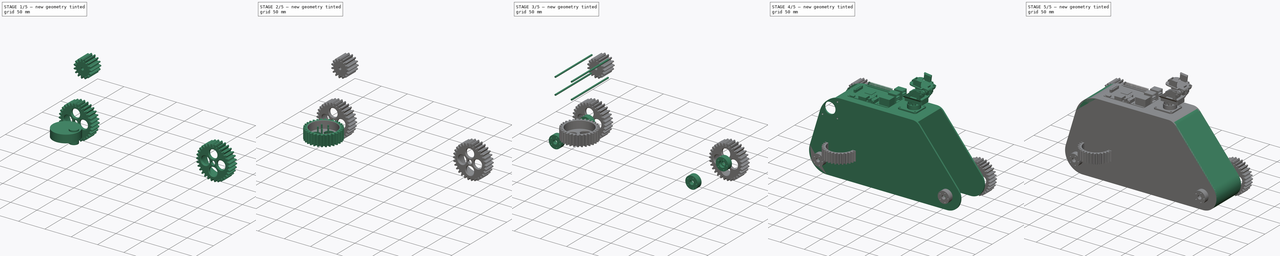
[diagram: build sequence overview — one tinted view per stage of 5, left to right]
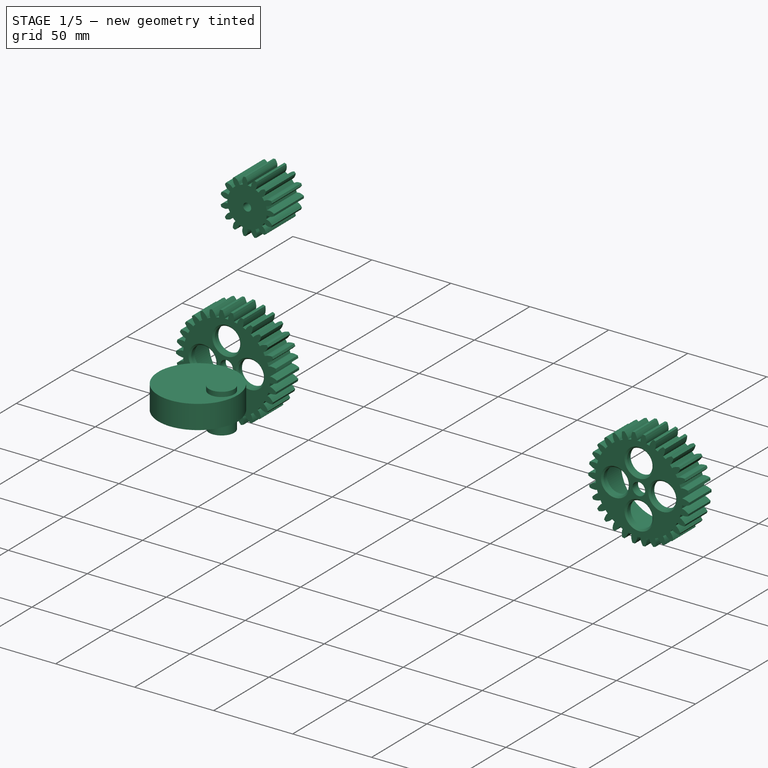
[diagram: stage 1 of 5 — iso view after this stage's code; geometry added in this stage tinted green]
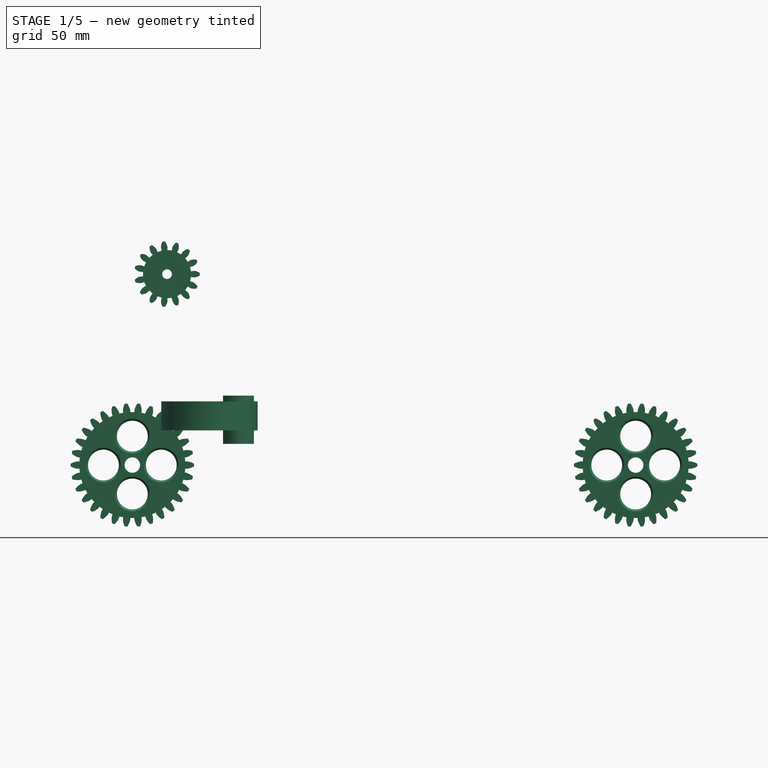
[diagram: stage 1 of 5 — front view after this stage's code; geometry added in this stage tinted green]
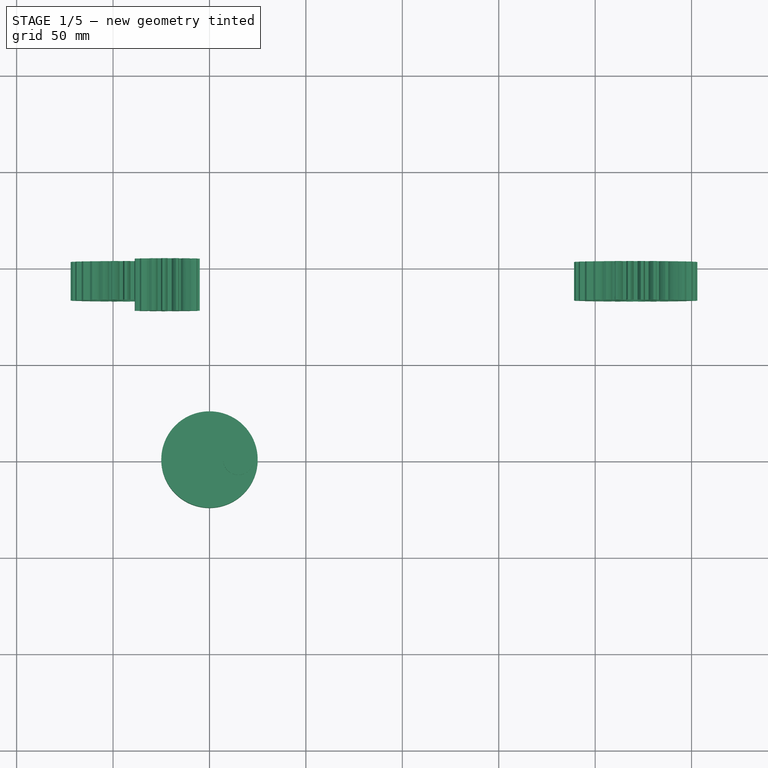
[diagram: stage 1 of 5 — top view after this stage's code; geometry added in this stage tinted green]
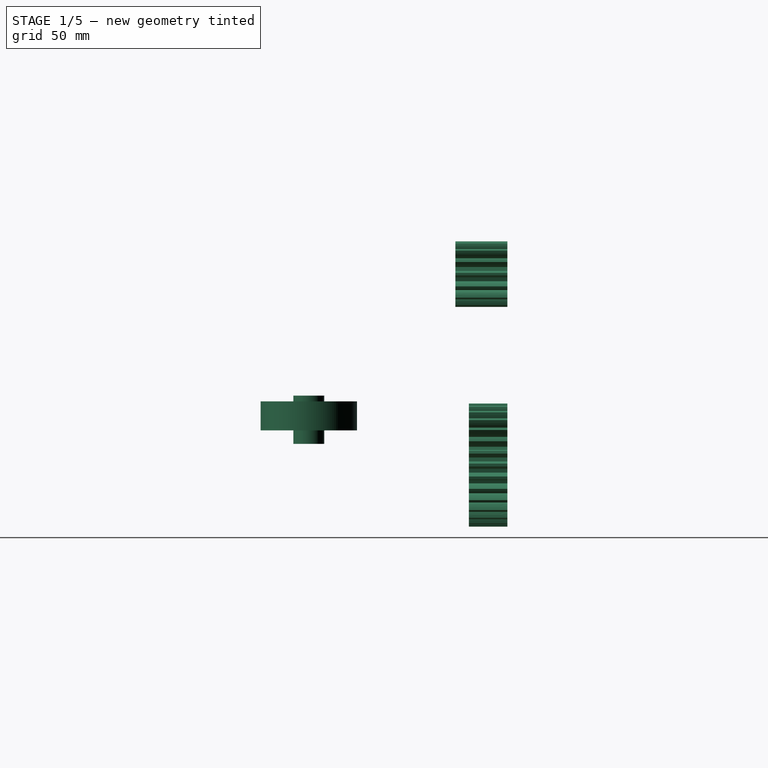
[diagram: stage 1 of 5 — right view after this stage's code; geometry added in this stage tinted green]
FCSTD DOCUMENT  (FreeCAD 0.15R4671 (Git))
Label: modelo
License: All rights reserved
LicenseURL: http://en.wikipedia.org/wiki/All_rights_reserved
objects: Part::Feature×40, Part::Cut×13, Part::Cylinder×10, Part::FeaturePython×8, Part::MultiFuse×7, Part::Mirroring×6, App::DocumentObjectGroup×6, Part::Box×5, Sketcher::SketchObject×1, PartDesign::Pad×1, PartDesign::Chamfer×1, PartDesign::Fillet×1
note: 94 computed .brp shape members not serialized (recipe doc carries the construction recipe); baked Part::Feature solids carry a one-line shape summary decoded from their .brp

FEATURE [Part::Cylinder] Cylinder006  label="Cylinder"
  Angle = 360
  Height = 25
  Placement = pos=(15,0,-2) rot=(0,0,1;0rad)
  Radius = 8
FEATURE [Part::Cylinder] Cylinder007  label="Cylinder005"
  Angle = 360
  Height = 15
  Placement = pos=(0,0,5) rot=(0,0,1;0rad)
  Radius = 25
FEATURE [Part::Feature] Fillet_solid  label="polia"
  Placement = pos=(-40,-10,-13) rot=(1,0,0;1.5708rad)
  shape: bbox 63.98 x 20 x 63.79 mm, 199 faces (baked)
FEATURE [Part::FeaturePython] Array005  label="polias-direita"  # Draft array (typed FeaturePython)
  Angle = 360
  ArrayType = 0
  Axis = (0,0,1)
  Base = -> Fillet_solid
  Center = (0,0,0)
  Fuse = false
  IntervalAxis = (0,0,0)
  IntervalX = (261,0,0)
  IntervalY = (0,1,0)
  IntervalZ = (0,0,0)
  NumberPolar = 0
  NumberX = 2
  NumberY = 0
  NumberZ = 0
FEATURE [Part::Mirroring] Part__Mirroring005  label="polias-esquerda"
  Base = (0,42,0)
  Normal = (0,1,0)
  Placement = pos=(0,-11,0) rot=(0,0,1;0rad)
  Source = -> Array005
FEATURE [App::DocumentObjectGroup] Group006  label="polia-correntes"
  Group = -> [Cut013,Chamfer,Fillet,Fillet_solid,Part__Mirroring005]
FEATURE [Part::FeaturePython] InvoluteGear001  # WARN: FeaturePython — macro-defined, semantics opaque (R4)
  backlash = 0
  beta = 0
  clearance = 0.25
  double_helix = false
  head = 0
  height = 27
  module = 2
  numpoints = 6
  pressure_angle = 20
  reversed_backlash = false
  shift = 0
  simple = false
  teeth = 15
  undercut = false
FEATURE [Part::Cylinder] Cylinder008  label="Cylinder006"
  Angle = 360
  Height = 25
  Placement = pos=(0,0,-3) rot=(0,0,1;0rad)
  Radius = 2.5
FEATURE [Part::Cylinder] Cylinder009  label="Cylinder007"
  Angle = 360
  Height = 20
  Placement = pos=(0,0,10) rot=(0,0,1;0rad)
  Radius = 10
FEATURE [Part::Cut] Cut014
  Base = -> InvoluteGear001
  Tool = -> Cylinder009
FEATURE [Part::Cut] Cut015
  Base = -> Cut014
  Placement = pos=(-22,-3,86) rot=(1,0,0;1.5708rad)
  Tool = -> Cylinder008
FEATURE [Part::Mirroring] Part__Mirroring006  label="Cut015 (Mirror #6)"
  Base = (0,39,0)
  Normal = (0,1,0)
  Placement = pos=(0,-5,0) rot=(0,0,1;0rad)
  Source = -> Cut015
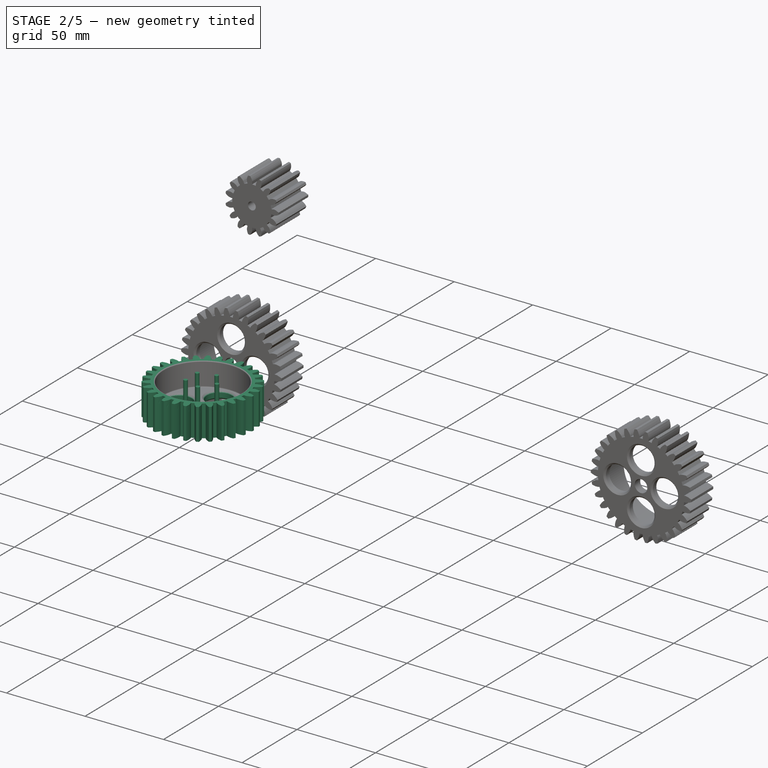
[diagram: stage 2 of 5 — iso view after this stage's code; geometry added in this stage tinted green]
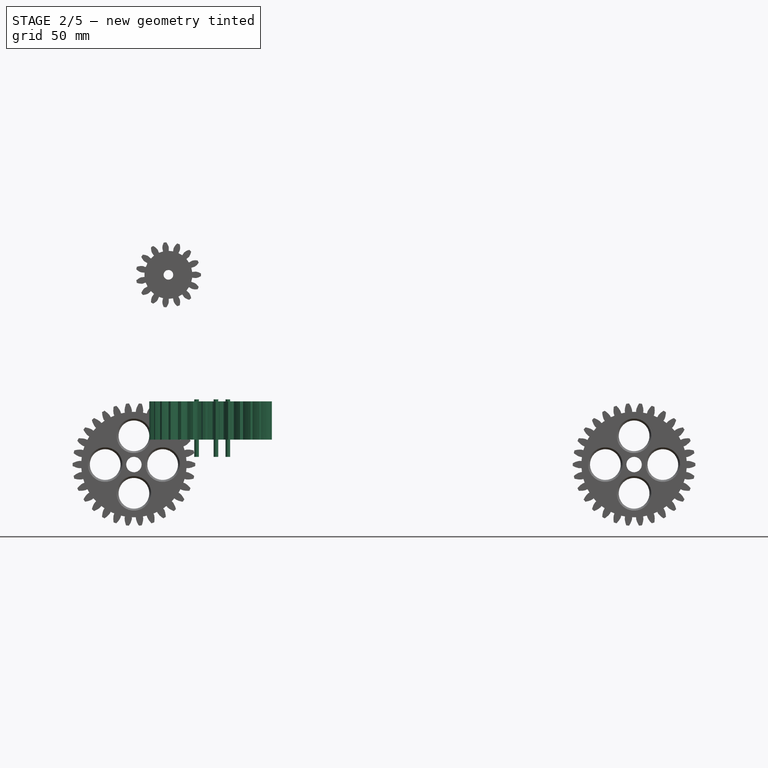
[diagram: stage 2 of 5 — front view after this stage's code; geometry added in this stage tinted green]
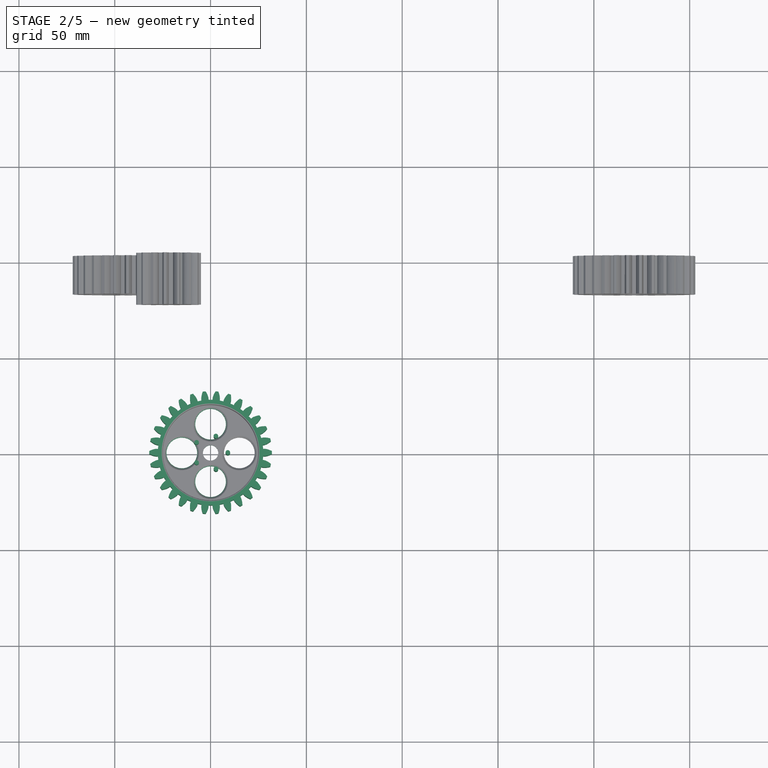
[diagram: stage 2 of 5 — top view after this stage's code; geometry added in this stage tinted green]
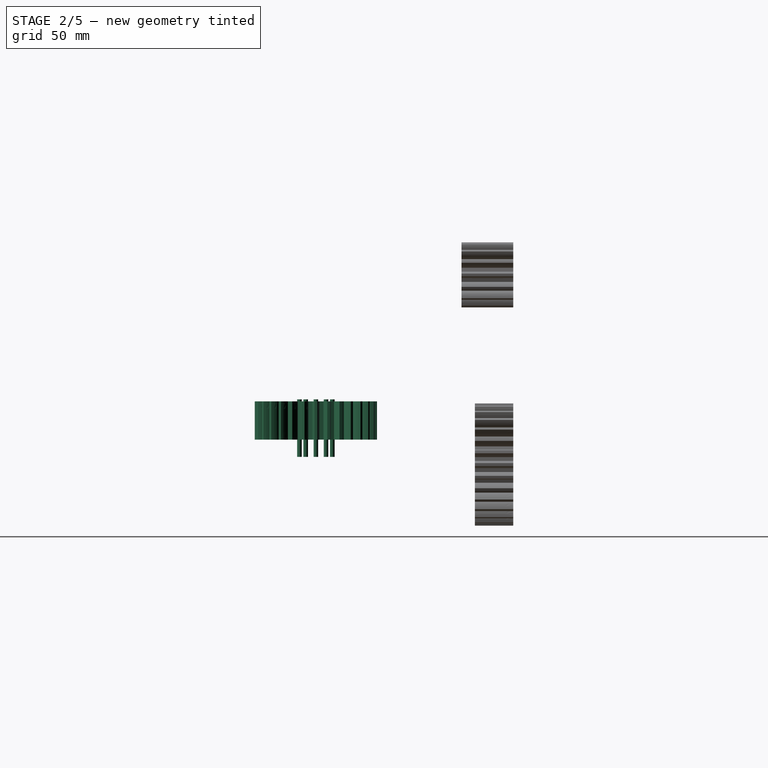
[diagram: stage 2 of 5 — right view after this stage's code; geometry added in this stage tinted green]
FEATURE [Part::Cylinder] Cylinder003  label="parafuso_modelo"
  Angle = 360
  Height = 30
  Placement = pos=(9,0,-9) rot=(0,0,1;0rad)
  Radius = 1.2
FEATURE [Part::FeaturePython] Array  label="parafusos"  # Draft array (typed FeaturePython)
  Angle = 360
  ArrayType = 1
  Axis = (0,0,1)
  Base = -> Cylinder003
  Center = (0,0,0)
  Fuse = false
  IntervalAxis = (0,0,0)
  IntervalX = (1,0,0)
  IntervalY = (0,1,0)
  IntervalZ = (0,0,0)
  NumberPolar = 5
  NumberX = 2
  NumberY = 2
  NumberZ = 1
FEATURE [App::DocumentObjectGroup] Group004  label="mancal"
  Group = -> [Fusion008]
FEATURE [Part::FeaturePython] InvoluteGear  # WARN: FeaturePython — macro-defined, semantics opaque (R4)
  backlash = 0
  beta = 0
  clearance = 0.25
  double_helix = false
  head = 0
  height = 20
  module = 2
  numpoints = 6
  pressure_angle = 20
  reversed_backlash = false
  shift = 0
  simple = false
  teeth = 30
  undercut = false
FEATURE [Part::Cylinder] Cylinder005  label="gear-eixo"
  Angle = 360
  Height = 25
  Placement = pos=(0,0,-2) rot=(0,0,1;0rad)
  Radius = 4
FEATURE [Part::FeaturePython] Array004  # Draft array (typed FeaturePython)
  Angle = 360
  ArrayType = 1
  Axis = (0,0,1)
  Base = -> Cylinder006
  Center = (0,0,0)
  Fuse = false
  IntervalAxis = (0,0,0)
  IntervalX = (1,0,0)
  IntervalY = (0,1,0)
  IntervalZ = (0,0,0)
  NumberPolar = 4
  NumberX = 1
  NumberY = 1
  NumberZ = 1
FEATURE [Part::Cut] Cut011
  Base = -> InvoluteGear
  Tool = -> Array004
FEATURE [Part::Cut] Cut012
  Base = -> Cut011
  Tool = -> Cylinder005
FEATURE [Part::Cut] Cut013
  Base = -> Cut012
  Tool = -> Cylinder007
FEATURE [PartDesign::Chamfer] Chamfer
  Base = -> Cut013 [Edge553,Edge549,Edge555,Edge192,Edge547,Edge189,Edge188,Edge191]
  Size = 1
FEATURE [PartDesign::Fillet] Fillet
  Base = -> Chamfer [Edge560,Edge558]
  Radius = 0.5
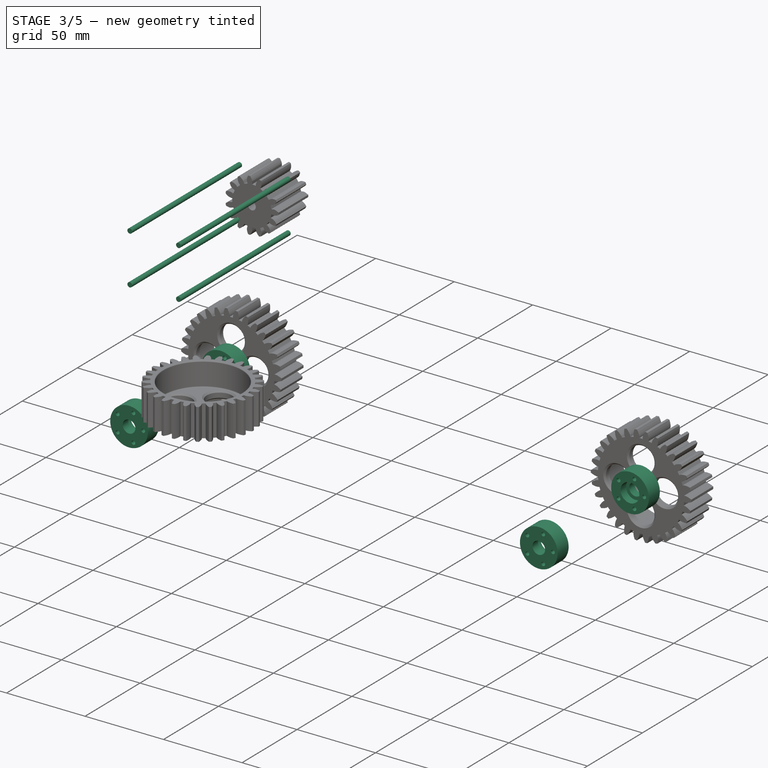
[diagram: stage 3 of 5 — iso view after this stage's code; geometry added in this stage tinted green]
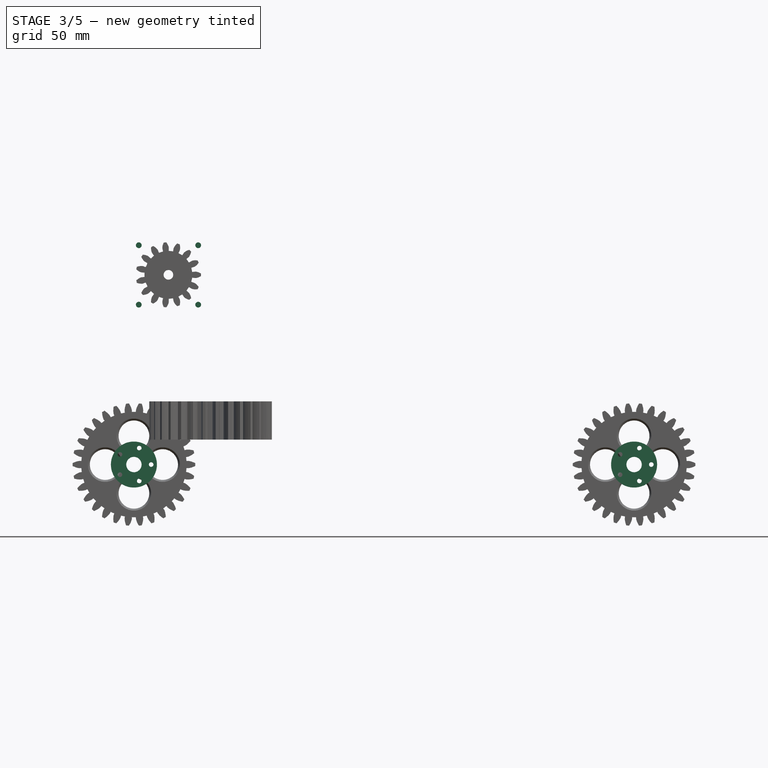
[diagram: stage 3 of 5 — front view after this stage's code; geometry added in this stage tinted green]
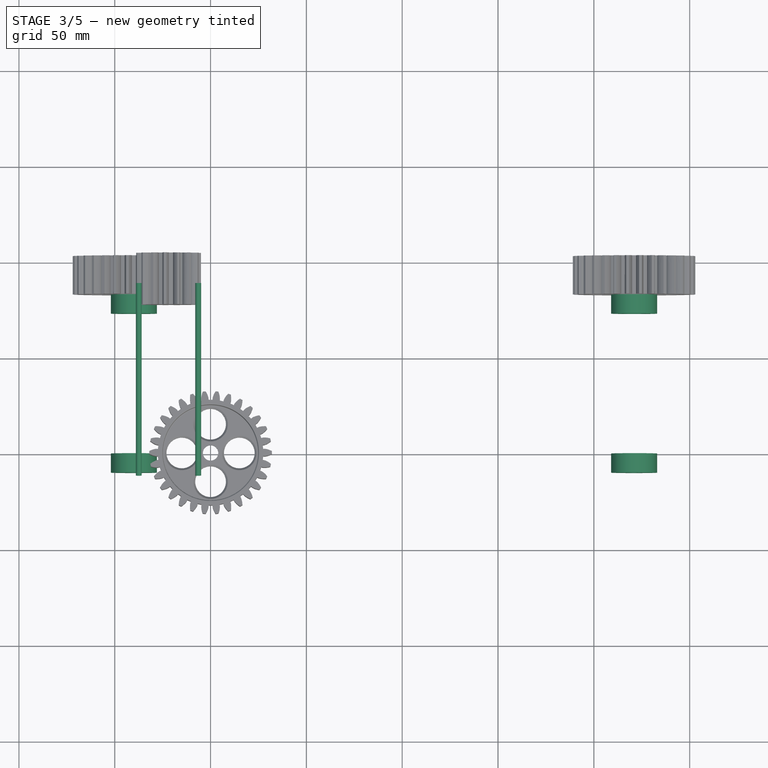
[diagram: stage 3 of 5 — top view after this stage's code; geometry added in this stage tinted green]
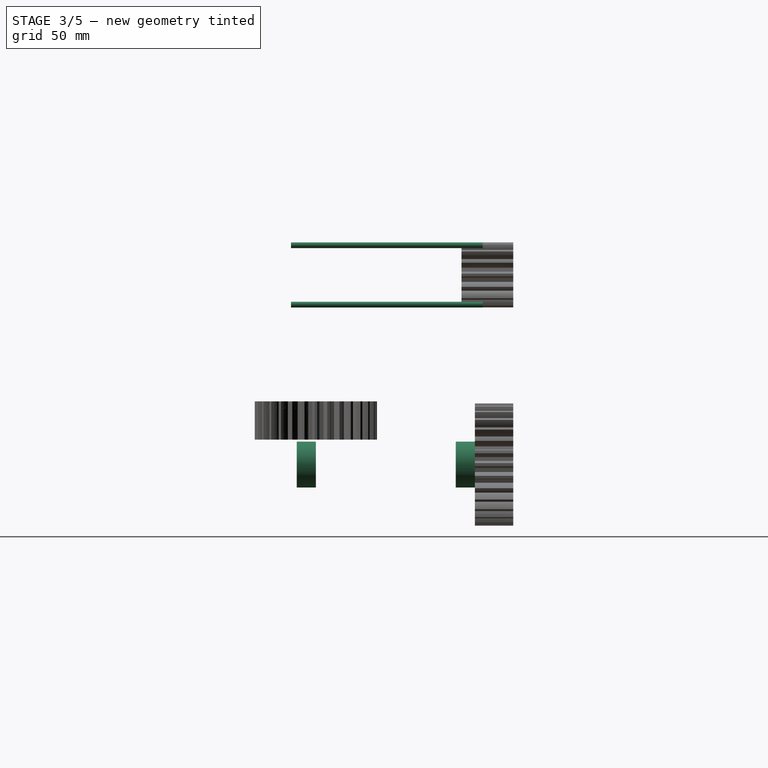
[diagram: stage 3 of 5 — right view after this stage's code; geometry added in this stage tinted green]
FEATURE [Part::Cylinder] Cylinder  label="mancal_corpo"
  Angle = 360
  Height = 10
  Radius = 12
FEATURE [Part::Cylinder] Cylinder001  label="mancal_rolamento_coxim"
  Angle = 360
  Height = 15
  Placement = pos=(0,0,-10) rot=(0,0,1;0rad)
  Radius = 6
FEATURE [Part::Cut] Cut001  label="mancal_corpo_coxim"
  Base = -> Cylinder
  Tool = -> Cylinder001
FEATURE [Part::Cylinder] Cylinder002  label="mancal_eixo"
  Angle = 360
  Height = 20
  Placement = pos=(0,0,-5) rot=(0,0,1;0rad)
  Radius = 4
FEATURE [Part::Cut] Cut002  label="mancal_corpo_cru"
  Base = -> Cut001
  Tool = -> Cylinder002
FEATURE [Part::Feature] Pad005
  Placement = pos=(0,-13,0) rot=(1,0,0;1.5708rad)
  shape: bbox 3.011 x 100 x 3.011 mm, 3 faces (baked)
FEATURE [Part::FeaturePython] Array002  # Draft array (typed FeaturePython)
  Angle = 360
  ArrayType = 0
  Axis = (0,0,1)
  Base = -> Pad005
  Center = (0,0,0)
  Fuse = false
  IntervalAxis = (0,0,0)
  IntervalX = (-31,0,0)
  IntervalY = (0,0,0)
  IntervalZ = (0,0,31)
  NumberPolar = 1
  NumberX = 2
  NumberY = 1
  NumberZ = 2
FEATURE [App::DocumentObjectGroup] Group  label="chassi"
  Group = -> [Pad,Cut009]
FEATURE [App::DocumentObjectGroup] Group003  label="corrente"
  Group = -> [Part__Feature296,Part__Feature026]
FEATURE [Part::Cut] Cut010  label="mancal_modelo"
  Base = -> Cut002
  Placement = pos=(0,0,0) rot=(1,0,0;1.5708rad)
  Tool = -> Array
FEATURE [Part::FeaturePython] Array003  label="mancal_dianteiro"  # Draft array (typed FeaturePython)
  Angle = 360
  ArrayType = 0
  Axis = (0,0,1)
  Base = -> Cut010
  Center = (0,0,0)
  Fuse = false
  IntervalAxis = (0,0,0)
  IntervalX = (261,0,0)
  IntervalY = (0,1,0)
  IntervalZ = (0,0,0)
  NumberPolar = 0
  NumberX = 2
  NumberY = 0
  NumberZ = 0
  Placement = pos=(-40,0,-13) rot=(0,0,1;0rad)
FEATURE [App::DocumentObjectGroup] Group005  label="motores_transmissao"
  Group = -> [Part__Mirroring004]
FEATURE [Part::Mirroring] Part__Mirroring  label="mancal_espelho"
  Base = (0,37,0)
  Normal = (0,1,0)
  Placement = pos=(0,-1,0) rot=(0,0,1;0rad)
  Source = -> Array003
FEATURE [Part::MultiFuse] Fusion008  label="mancais"
  Shapes = -> [Part__Mirroring,Array003]
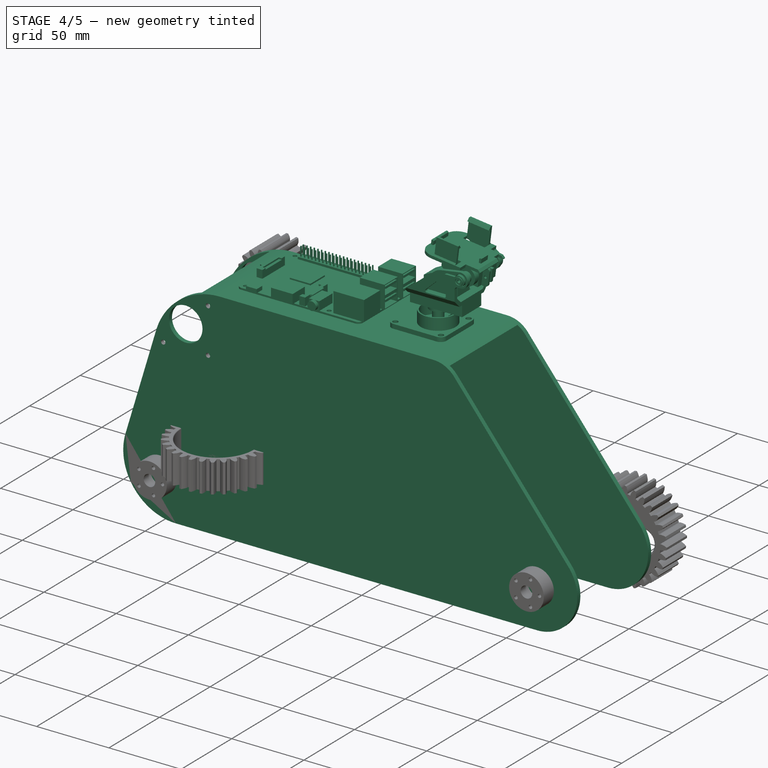
[diagram: stage 4 of 5 — iso view after this stage's code; geometry added in this stage tinted green]
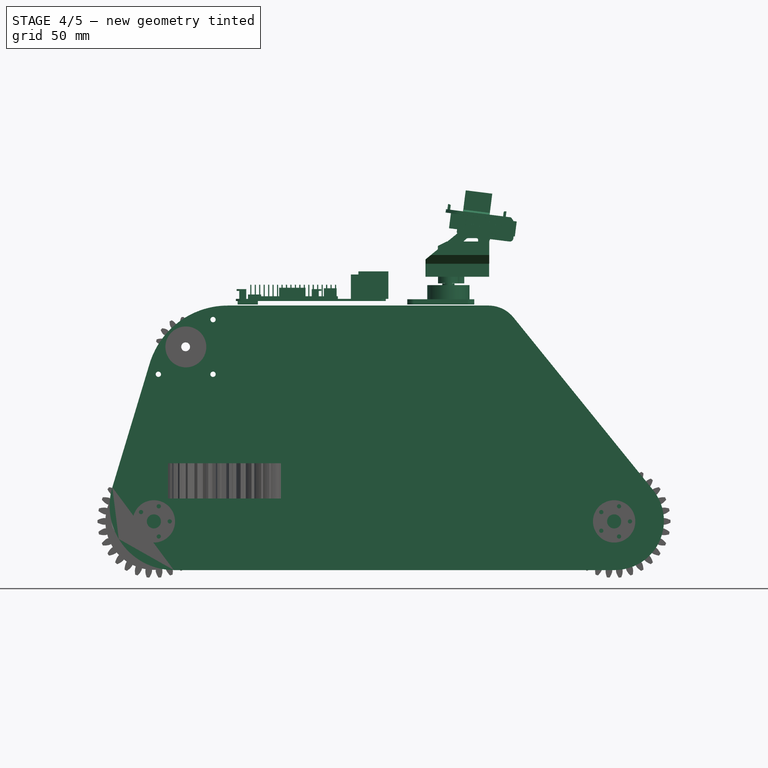
[diagram: stage 4 of 5 — front view after this stage's code; geometry added in this stage tinted green]
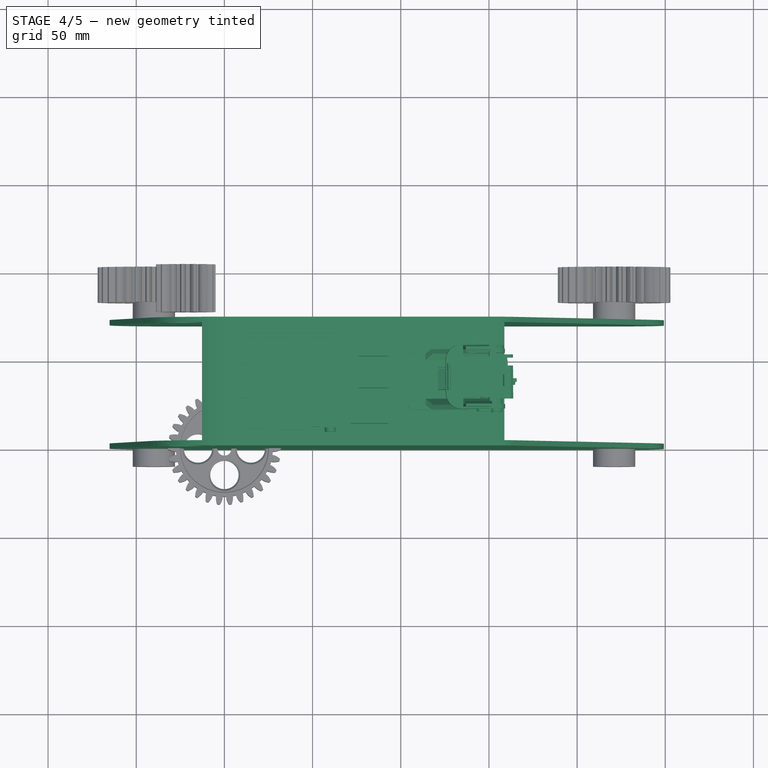
[diagram: stage 4 of 5 — top view after this stage's code; geometry added in this stage tinted green]
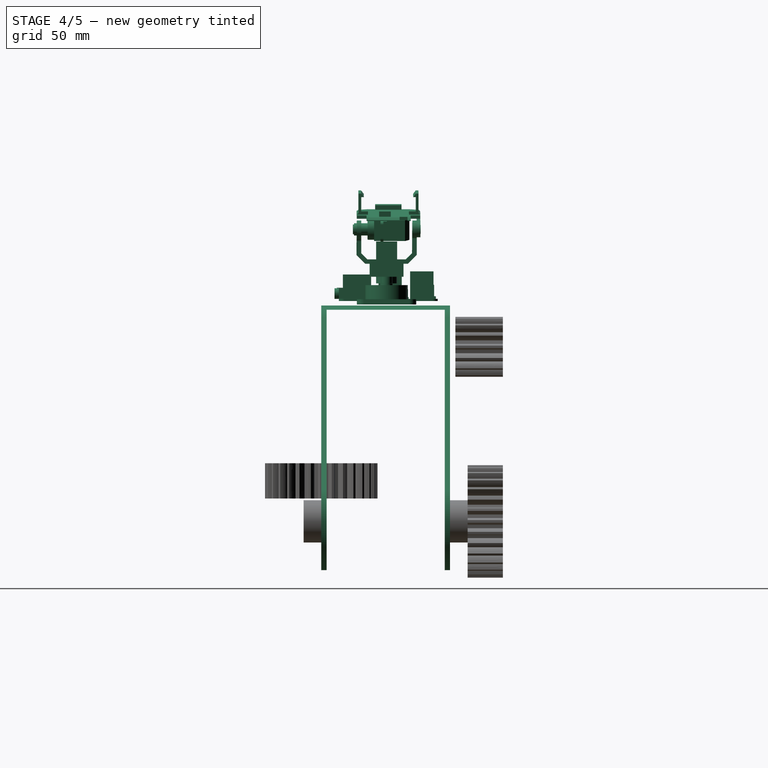
[diagram: stage 4 of 5 — right view after this stage's code; geometry added in this stage tinted green]
FEATURE [Part::Box] Box001  label="Cube"
  Height = 182
  Length = 400
  Placement = pos=(-115,3,-75) rot=(0,0,1;0rad)
  Width = 67
FEATURE [Part::Feature] Pad001  label="solido-chassi001"
  Placement = pos=(0,0,0) rot=(1,0,0;1.5708rad)
  shape: bbox 314.3 x 73 x 150 mm, 10 faces (baked)
FEATURE [Part::Cut] Cut  label="chassi-corpo"
  Base = -> Pad001
  Tool = -> Box001
FEATURE [Part::Box] Box003  label="aba-lateral"
  Height = 25
  Length = 30
  Placement = pos=(-10,0,-10) rot=(0,0,1;0rad)
  Width = 3
FEATURE [Part::Cylinder] Cylinder004
  Angle = 360
  Height = 10
  Placement = pos=(-5,6,10) rot=(1,0,0;1.5708rad)
  Radius = 1.5
FEATURE [Part::FeaturePython] Array001  # Draft array (typed FeaturePython)
  Angle = 360
  ArrayType = 0
  Axis = (0,0,1)
  Base = -> Cylinder004
  Center = (0,0,0)
  Fuse = false
  IntervalAxis = (0,0,0)
  IntervalX = (19,0,0)
  IntervalY = (0,0,0)
  IntervalZ = (0,0,-15)
  NumberPolar = 0
  NumberX = 2
  NumberY = 1
  NumberZ = 2
FEATURE [Part::Cut] Cut006  label="aba-lateral-com-furos"
  Base = -> Box003
  Tool = -> Array001
FEATURE [Part::Feature] Part__Feature  label="Raspberry Pi (V.1.2) B+"
  shape: bbox 85 x 56 x 1.2 mm, 22 faces (baked)
FEATURE [Part::Feature] Part__Feature001  label="Raspberry Pi (V.1.2) B+001"
  shape: bbox 5.5 x 22.3 x 1 mm, 14 faces (baked)
FEATURE [Part::Feature] Part__Feature002  label="Raspberry Pi (V.1.2) B+002"
  shape: bbox 5.5 x 22.3 x 1 mm, 14 faces (baked)
FEATURE [Part::Feature] Part__Feature003  label="Raspberry Pi (V.1.2) B+003"
  shape: bbox 4 x 22.3 x 4.5 mm, 6 faces (baked)
FEATURE [Part::Feature] Part__Feature004  label="Raspberry Pi (V.1.2) B+004"
  shape: bbox 4 x 22.3 x 4.5 mm, 6 faces (baked)
FEATURE [Part::Feature] Part__Feature005  label="Raspberry Pi (V.1.2) B+005"
  shape: bbox 50.7 x 5 x 8 mm, 206 faces (baked)
FEATURE [Part::Feature] Part__Feature006  label="Raspberry Pi (V.1.2) B+006"
  shape: bbox 11.5 x 12 x 2 mm, 6 faces (baked)
FEATURE [Part::Feature] Part__Feature007  label="Raspberry Pi (V.1.2) B+007"
  shape: bbox 7.5 x 5.5 x 2.5 mm, 6 faces (baked)
FEATURE [Part::Feature] Part__Feature008  label="Raspberry Pi (V.1.2) B+008"
  shape: bbox 15 x 12.1 x 6.3 mm, 6 faces (baked)
FEATURE [Part::Feature] Part__Feature009  label="Raspberry Pi (V.1.2) B+009"
  shape: bbox 7.2 x 15.5 x 6 mm, 10 faces (baked)
FEATURE [Part::Feature] Part__Feature010  label="Raspberry Pi (V.1.2) B+010"
  shape: bbox 21.25 x 16 x 13.8 mm, 6 faces (baked)
FEATURE [Part::Feature] Part__Feature011  label="Raspberry Pi (V.1.2) B+011"
  shape: bbox 17 x 13.2 x 15.6 mm, 16 faces (baked)
FEATURE [Part::Feature] Part__Feature012  label="Raspberry Pi (V.1.2) B+012"
  shape: bbox 16.5 x 11 x 1.5 mm, 6 faces (baked)
FEATURE [Part::Feature] Part__Feature013  label="Raspberry Pi (V.1.2) B+013"
  shape: bbox 16.5 x 11 x 1.5 mm, 6 faces (baked)
FEATURE [Part::Feature] Part__Feature014  label="Raspberry Pi (V.1.2) B+014"
  shape: bbox 16.5 x 11 x 1.5 mm, 6 faces (baked)
FEATURE [Part::Feature] Part__Feature015  label="Raspberry Pi (V.1.2) B+015"
  shape: bbox 16.5 x 11 x 1.5 mm, 6 faces (baked)
FEATURE [Part::Feature] Part__Feature016  label="Raspberry Pi (V.1.2) B+016"
  shape: bbox 17 x 13.2 x 15.6 mm, 16 faces (baked)
FEATURE [Part::Feature] Part__Feature017  label="Raspberry Pi (V.1.2) B+017"
  shape: bbox 14.3 x 14.3 x 1 mm, 6 faces (baked)
FEATURE [Part::MultiFuse] Fusion005
  Placement = pos=(49,38,112) rot=(0,0,1;0rad)
  Shapes = -> [Part__Feature,Part__Feature009,Part__Feature015,Part__Feature013,Part__Feature016,Part__Feature001,Part__Feature017,Part__Feature007,Part__Feature008,Part__Feature006,Part__Feature011,Part__Feature012,Part__Feature010,Part__Feature014,Part__Feature004,Part__Feature002,Part__Feature005,Part__Feature003]
FEATURE [App::DocumentObjectGroup] Group002  label="raspiberry"
  Group = -> [Fusion005]
FEATURE [Part::Feature] Part__Feature018  label="pantilt"
  shape: bbox 33.7 x 38 x 11 mm, 57 faces (baked)
FEATURE [Part::Feature] Part__Feature019  label="pantilt001"
  Placement = pos=(0,0,11.9) rot=(-1,0,0;1.5708rad)
  shape: bbox 21.9 x 18 x 9.5 mm, 32 faces (baked)
FEATURE [Part::Feature] Part__Feature020  label="pantilt002"
  Placement = pos=(5.99275,-17.5686,35.7) rot=(0.57532,0.578363,-0.578363;4.18574rad)
  shape: bbox 11.95 x 32.34 x 27.3 mm, 37 faces (baked)
FEATURE [Part::Feature] Part__Feature021  label="pantilt003"
  Placement = pos=(0.121843,-23.0997,15.7) rot=(0,0,1;0.005275rad)
  shape: bbox 19.42 x 45 x 31.9 mm, 38 faces (baked)
FEATURE [Part::Feature] Part__Feature022  label="pantilt004"
  Placement = pos=(0.121843,-23.0997,15.7) rot=(0,0,1;0.005275rad)
  shape: bbox 17.17 x 45.09 x 31.9 mm, 31 faces (baked)
FEATURE [Part::Feature] Part__Feature023  label="pantilt005"
  Placement = pos=(-9.55692,-27.1508,42.6) rot=(0,0,1;1.57607rad)
  shape: bbox 9.533 x 14.46 x 7 mm, 19 faces (baked)
FEATURE [Part::Feature] Part__Feature024  label="pantilt006"
  Placement = pos=(18.9917,1.6326,52.1475) rot=(0.000165,-0.062515,0.998044;3.14686rad)
  shape: bbox 36.13 x 40.35 x 26.62 mm, 71 faces (baked)
FEATURE [Part::Feature] Part__Feature025  label="pantilt007"
  Placement = pos=(12.8545,-10.3061,50.6501) rot=(0.708271,-0.704545,-0.044364;3.2298rad)
  shape: bbox 27.32 x 33.06 x 15.27 mm, 37 faces (baked)
FEATURE [Part::MultiFuse] Fusion006  label="suporte_camera"
  Placement = pos=(127,37,110) rot=(0,0,1;1.5708rad)
  Shapes = -> [Part__Feature018,Part__Feature023,Part__Feature020,Part__Feature025,Part__Feature022,Part__Feature024,Part__Feature019,Part__Feature021]
FEATURE [Part::Feature] Part__Feature026  label="chain"
  Placement = pos=(-866.037,-40.685,6.53) rot=(0,0,1;0rad)
  shape: bbox 30.58 x 17.66 x 32.06 mm, 42 faces (baked)
FEATURE [Part::Feature] Part__Feature296  label="chain270"
  Placement = pos=(-897.87,-40.685,0) rot=(1,0,0;3.14159rad)
  shape: bbox 30.58 x 14.7 x 13.05 mm, 30 faces (baked)
FEATURE [Part::Feature] Part__Feature297  label="JLB Stepper Motor 17HS1352-P4130"
  shape: bbox 42 x 28.3 x 42 mm, 103 faces, 0 solids (baked)
FEATURE [Part::Feature] Part__Feature298  label="JLB Stepper Motor 17HS1352-P4131"
  shape: bbox 42 x 12.85 x 45.7 mm, 130 faces, 0 solids (baked)
FEATURE [Part::Feature] Part__Feature299  label="JLB Stepper Motor 17HS1352-P4132"
  shape: bbox 42 x 12 x 42 mm, 510 faces, 0 solids (baked)
FEATURE [Part::Feature] Part__Feature300  label="JLB Stepper Motor 17HS1352-P4133"
  shape: bbox 12.4 x 5.75 x 7 mm, 106 faces, 0 solids (baked)
FEATURE [Part::Feature] Part__Feature301  label="JLB Stepper Motor 17HS1352-P4134"
  shape: bbox 0.64 x 0.64 x 5.95 mm, 9 faces, 0 solids (baked)
FEATURE [Part::Feature] Part__Feature302  label="JLB Stepper Motor 17HS1352-P4135"
  shape: bbox 0.64 x 0.64 x 5.95 mm, 9 faces, 0 solids (baked)
FEATURE [Part::Feature] Part__Feature303  label="JLB Stepper Motor 17HS1352-P4136"
  shape: bbox 0.64 x 0.64 x 5.95 mm, 9 faces, 0 solids (baked)
FEATURE [Part::Feature] Part__Feature304  label="JLB Stepper Motor 17HS1352-P4137"
  shape: bbox 0.64 x 0.64 x 5.95 mm, 9 faces, 0 solids (baked)
FEATURE [Part::MultiFuse] Fusion007  label="motor_transmissao_direito"
  Placement = pos=(-22,19,86) rot=(0,0,1;3.14159rad)
  Shapes = -> [Part__Feature297,Part__Feature303,Part__Feature298,Part__Feature302,Part__Feature299,Part__Feature300,Part__Feature301,Part__Feature304]
FEATURE [Part::Mirroring] Part__Mirroring004  label="motor_transmissao_esquerdo"
  Base = (0,50,0)
  Normal = (0,1,0)
  Placement = pos=(0,-27,0) rot=(0,0,1;0rad)
  Source = -> Fusion007
FEATURE [Part::Feature] Pad003
  Placement = pos=(0,38,0) rot=(1,0,0;1.5708rad)
  shape: bbox 23.19 x 90 x 23.19 mm, 3 faces (baked)
FEATURE [Part::Cut] Cut008
  Base = -> Cut
  Tool = -> Pad003
FEATURE [Part::Cut] Cut009  label="chassi-motor"
  Base = -> Cut008
  Tool = -> Array002
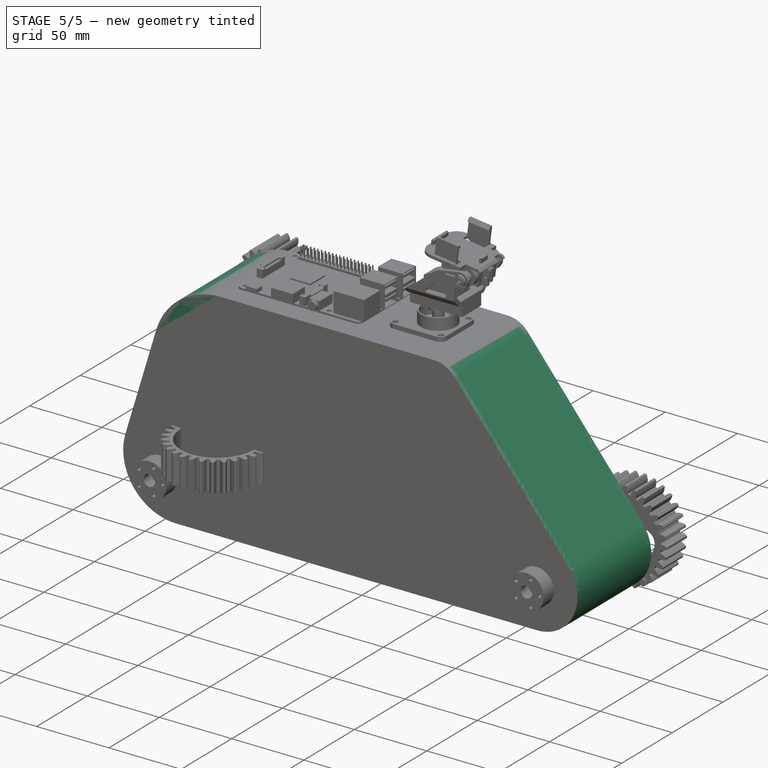
[diagram: stage 5 of 5 — iso view after this stage's code; geometry added in this stage tinted green]
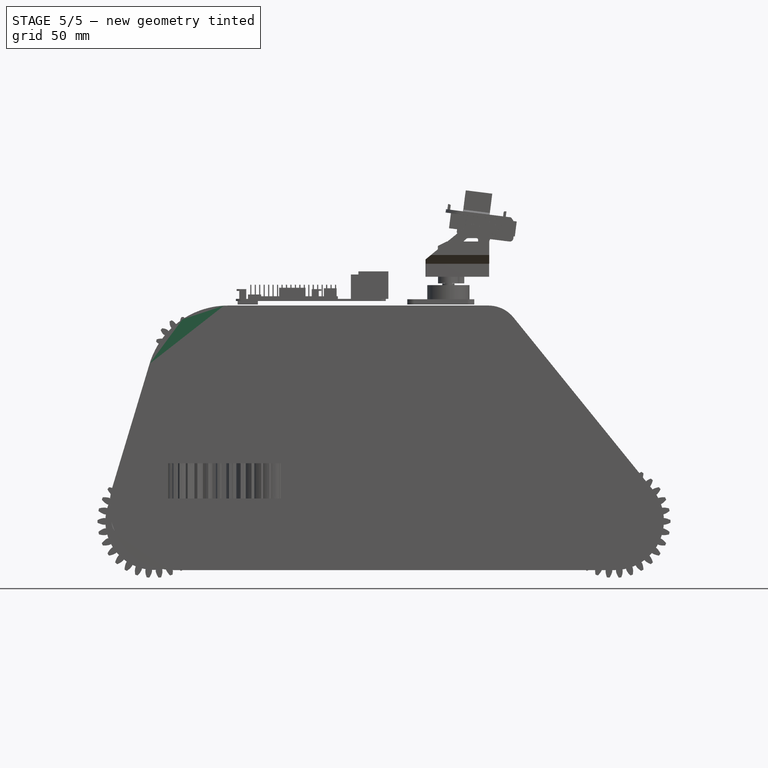
[diagram: stage 5 of 5 — front view after this stage's code; geometry added in this stage tinted green]
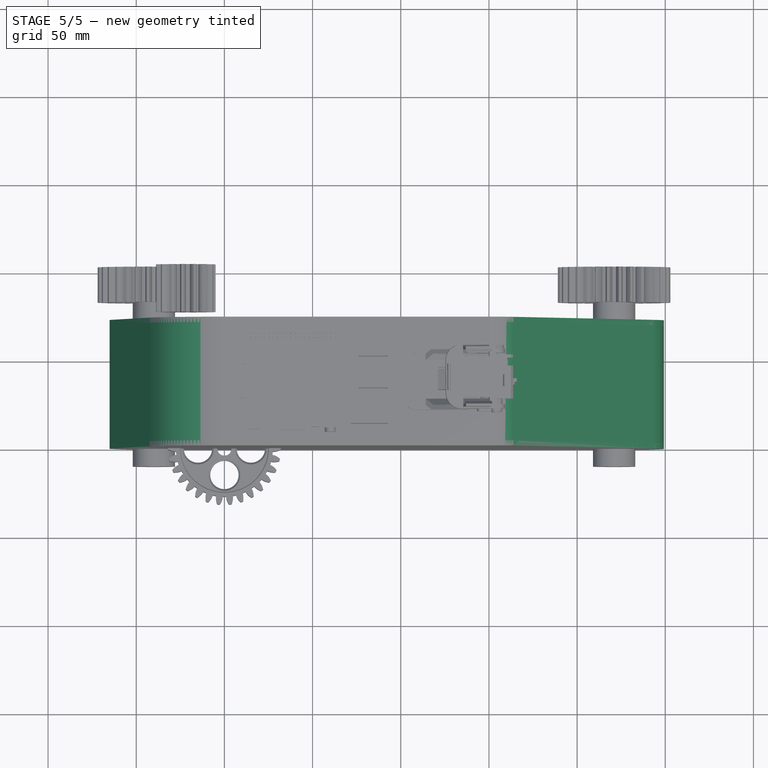
[diagram: stage 5 of 5 — top view after this stage's code; geometry added in this stage tinted green]
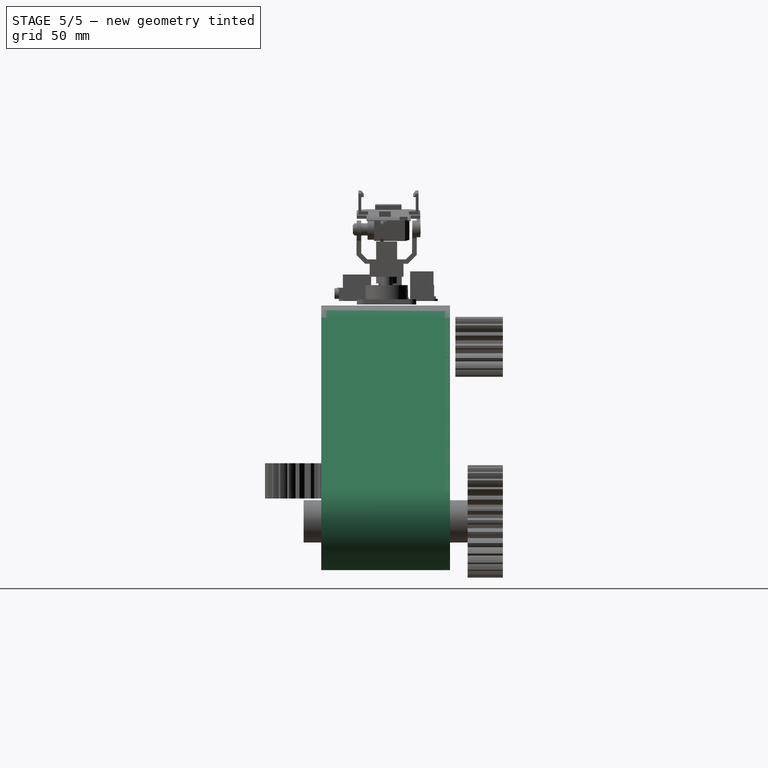
[diagram: stage 5 of 5 — right view after this stage's code; geometry added in this stage tinted green]
FEATURE [Part::Box] Box  label="Bateria 12MVA-7"
  Height = 94
  Length = 151
  Placement = pos=(0,4,0) rot=(0,0,1;0rad)
  Width = 65
FEATURE [Sketcher::SketchObject] Sketch  label="desenho-chassi-lateral"
  Placement = pos=(0,0,0) rot=(1,0,0;1.5708rad)
  sketch-geometry (9):
    g0: LineSegment StartX=-42.4249 StartY=76.4022 StartZ=0 EndX=-63.5583 EndY=6.32172 EndZ=0
    g1: LineSegment StartX=-28.6972 StartY=-40.6026 StartZ=0 EndX=221.303 EndY=-40.6026 EndZ=0
    g2: LineSegment StartX=243.008 StartY=4.86769 StartZ=0 EndX=163.978 EndY=102.587 EndZ=0
    g3: ArcOfCircle CenterX=1.98789 CenterY=63.0091 CenterZ=0 NormalX=0 NormalY=0 NormalZ=1 Radius=46.3883 StartAngle=1.5708 EndAngle=2.84871
    g4: ArcOfCircle CenterX=149.711 CenterY=91.0481 CenterZ=0 NormalX=0 NormalY=0 NormalZ=1 Radius=18.3492 StartAngle=0.680053 EndAngle=1.5708
    g5: ArcOfCircle CenterX=221.303 CenterY=-12.6868 CenterZ=0 NormalX=0 NormalY=0 NormalZ=1 Radius=27.9159 StartAngle=4.71239 EndAngle=6.96324
    g6: ArcOfCircle CenterX=-28.6972 CenterY=-4.19094 CenterZ=0 NormalX=0 NormalY=0 NormalZ=1 Radius=36.4117 StartAngle=2.84871 EndAngle=4.71239
    g7: LineSegment StartX=1.98789 StartY=109.397 StartZ=0 EndX=149.711 EndY=109.397 EndZ=0
    g8: LineSegment [constr] StartX=149.711 StartY=109.397 StartZ=0 EndX=238.474 EndY=109.397 EndZ=0
  constraints (17):
    c: Horizontal(g1)
    c: Tangent(g0,g3) = -1.5708
    c: Tangent(g2,g5) = -1.5708
    c: Tangent(g1,g5) = -1.5708
    c: Tangent(g0,g6) = -1.5708
    c: Tangent(g1,g6) = -1.5708
    c: Coincident(g7,g3)
    c: Coincident(g7,g4)
    c: Horizontal(g7)
    c: Horizontal(g8)
    c: Coincident(g8,g4)
    c: DistanceY(g1,g4) = 150
    c: Tangent(g4,g7)
    c: Tangent(g2,g4)
    c: Coincident(g2,g4)
    c: Tangent(g3,g7)
    c: DistanceX(g1,g1) = 250
FEATURE [PartDesign::Pad] Pad  label="chassi-solido"
  Length = 73
  Length2 = 100
  Placement = pos=(0,0,0) rot=(1,0,0;1.5708rad)
  Reversed = true
  Sketch = -> Sketch
  Type = 0
FEATURE [Part::Box] Box002  label="suporte-bateria-barra"
  Height = 15
  Length = 20
  Width = 67
FEATURE [Part::Box] Box004  label="Cube003"
  Height = 16
  Length = 21
  Placement = pos=(3,-1,3) rot=(0,0,1;0rad)
  Width = 69
FEATURE [Part::Mirroring] Part__Mirroring002  label="suporte-lateral-espelho"
  Base = (0,33.5,0)
  Normal = (0,1,0)
  Source = -> Cut006
FEATURE [Part::MultiFuse] Fusion  label="suportes-laterais"
  Shapes = -> [Part__Mirroring002,Cut006]
FEATURE [Part::MultiFuse] Fusion001
  Shapes = -> [Box002,Fusion]
FEATURE [Part::Cut] Cut007  label="suporte-bateria"
  Base = -> Fusion001
  Placement = pos=(-3,3,-3) rot=(0,0,1;0rad)
  Tool = -> Box004
FEATURE [Part::Mirroring] Part__Mirroring003  label="suporte-bateria-espelho"
  Base = (75.5,0,0)
  Normal = (1,0,0)
  Source = -> Cut007
FEATURE [Part::MultiFuse] Fusion004  label="suporte"
  Shapes = -> [Part__Mirroring003,Cut007]
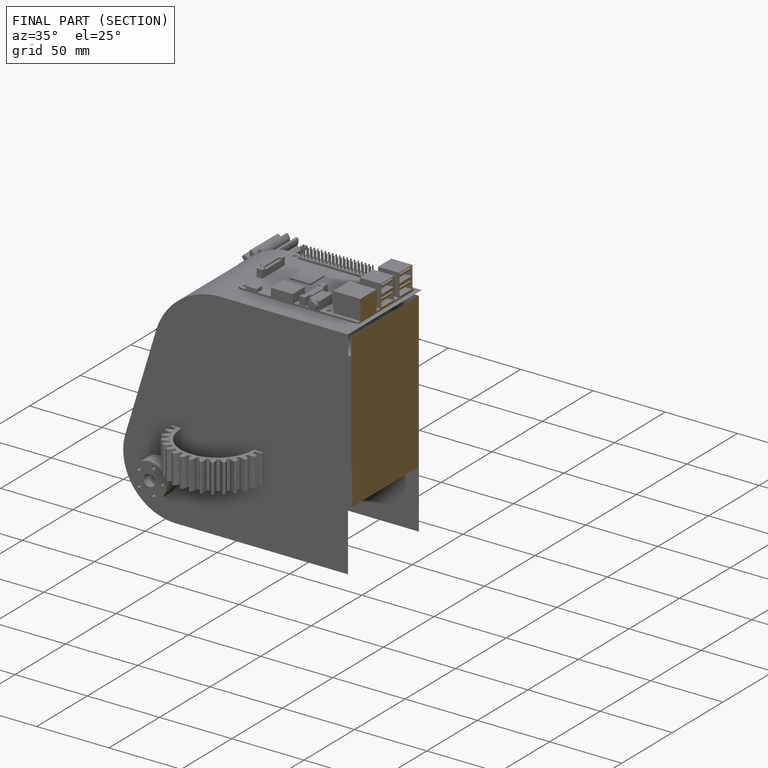
[diagram: finished part — half-section view (interior)]
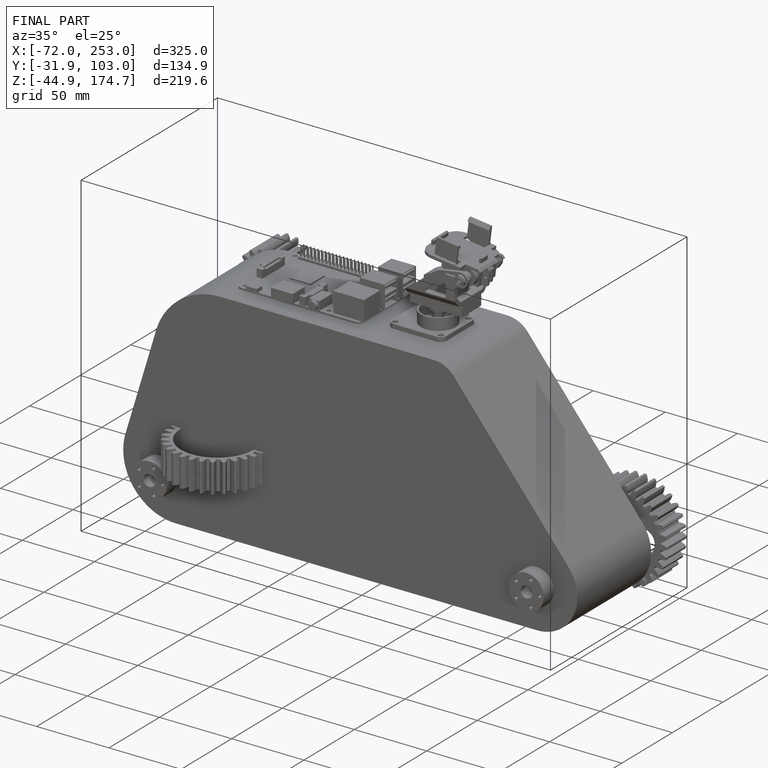
[diagram: finished part — iso view with bounding-box wireframe]
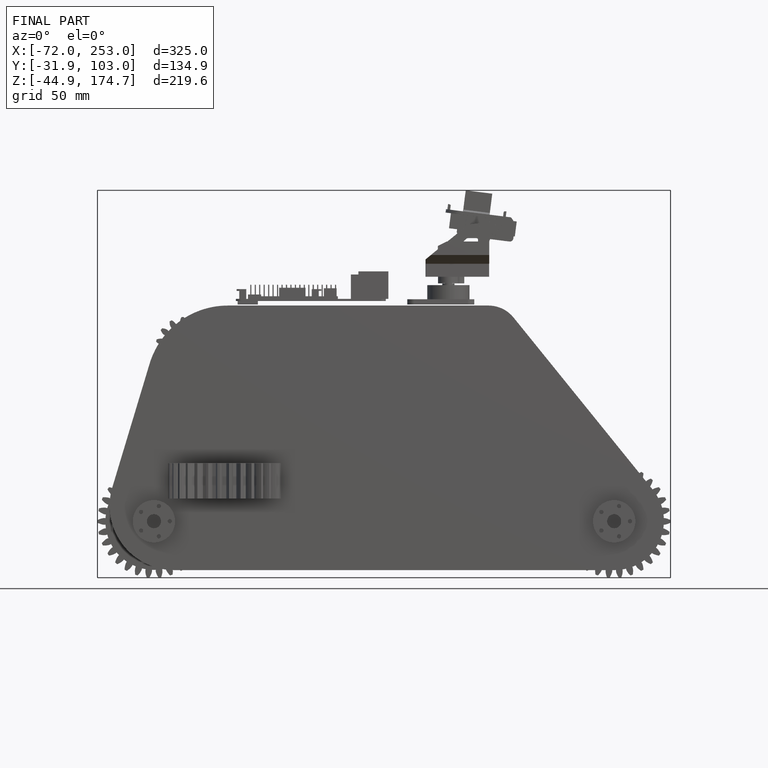
[diagram: finished part — front view with bounding-box wireframe]
